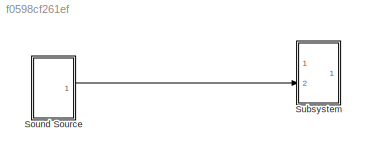
MODEL slx_f0598cf261ef
KIND model
CONFIG AbsTol = auto
CONFIG EnableMultiTasking = off
CONFIG FixedStep = auto
CONFIG MaxStep = auto
CONFIG MinStep = auto
CONFIG RelTol = 1e-3
CONFIG SampleTimeConstraint = Unconstrained
CONFIG Solver = VariableStepAuto
CONFIG SolverName = VariableStepAuto
CONFIG StartTime = 0.0
CONFIG StopTime = 3.0
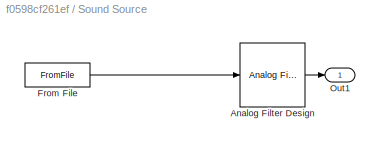
BLOCK [SubSystem] Sound Source
  Ports = [0, 1]
  RequestExecContextInheritance = off
BLOCK [Reference] Sound Source/Analog Filter Design  REF=dsparch4/Analog
Filter Design
  Ports = [1, 1]
  SourceBlock = dsparch4/Analog\nFilter Design
  SourceProductBaseCode = DS
  SourceType = Analog Filter Design
BLOCK [FromFile] Sound Source/From File
  FileName = <userpath>\Downloads\sound.mat
  SampleTime = 0
BLOCK [Outport] Sound Source/Out1
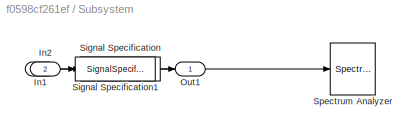
BLOCK [SubSystem] Subsystem
  Ports = [2, 1]
  RequestExecContextInheritance = off
BLOCK [Inport] Subsystem/In1
BLOCK [Inport] Subsystem/In2
  Port = 2
BLOCK [Outport] Subsystem/Out1
BLOCK [SignalSpecification] Subsystem/Signal Specification
  SampleTime = 1/16e4
BLOCK [SignalSpecification] Subsystem/Signal Specification1
  SampleTime = 1/16e4
BLOCK [SpectrumAnalyzer] Subsystem/Spectrum Analyzer
  Ports = [1]
  ScopeSpecificationString = spbscopes.SpectrumAnalyzerBlockCfg('CurrentConfiguration', extmgr.ConfigurationSet(extmgr.Configuration('Core','General UI',true),extmgr.Configuration('Core','Source UI',true),extmgr.Configuration('Sources','WiredSimulink',true),extmgr.Configuration('Visuals','Spectrum',true,'AxesProperties',struct('Color',{[0 0 0],[0 0 0]},'XColor',{[0.686274509803922 0.686274509803922 0.686274509803922],[0.68627...<+1821ch>
LINE Sound Source/Analog Filter Design:1 -> Sound Source/Out1:1
LINE Sound Source/From File:1 -> Sound Source/Analog Filter Design:1
LINE Sound Source:1 -> Subsystem:2
LINE Subsystem/In1:1 -> Subsystem/Signal Specification1:1
LINE Subsystem/In2:1 -> Subsystem/Signal Specification:1
LINE Subsystem/Signal Specification1:1 -> Subsystem/Out1:1
LINE Subsystem/Signal Specification:1 -> Subsystem/Spectrum Analyzer:1
